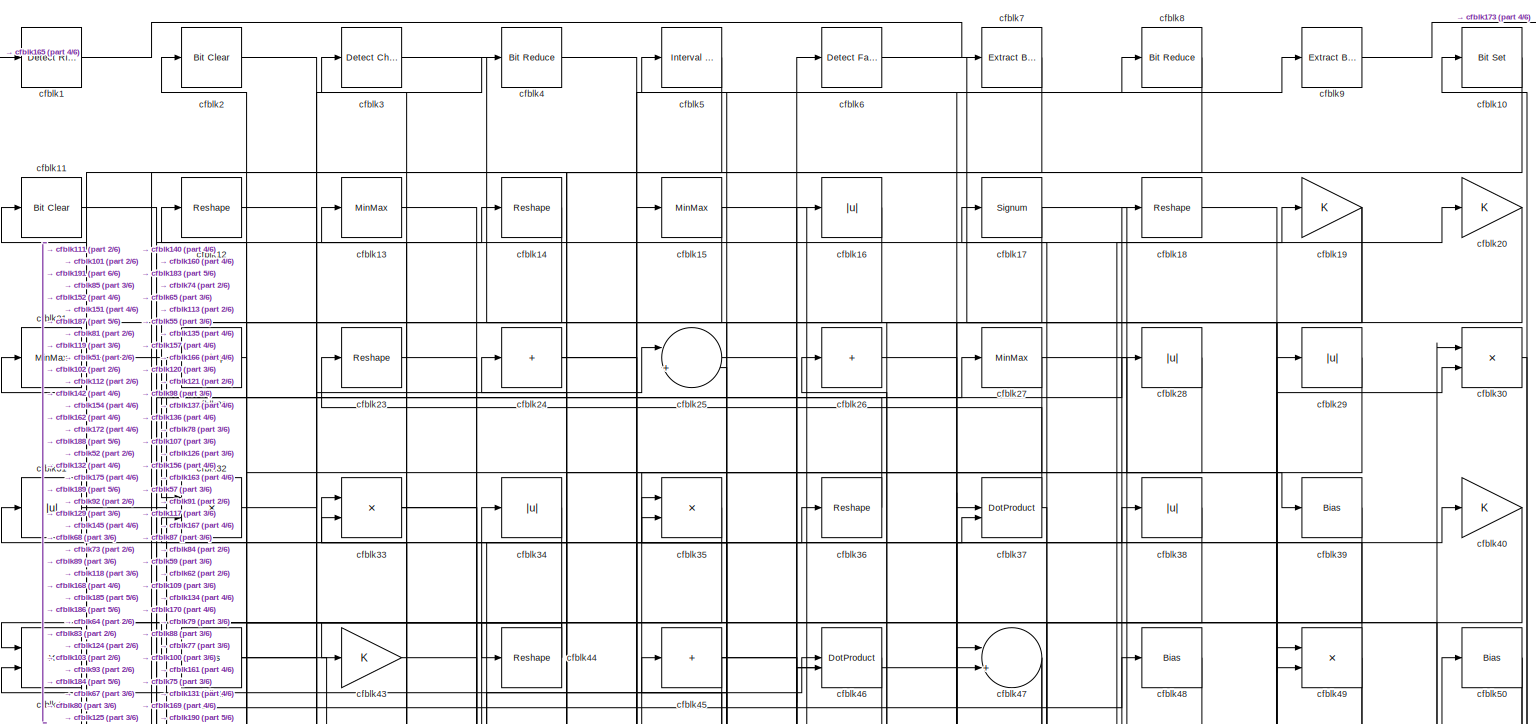
[diagram: root canvas - part 1/6, full width, top band]
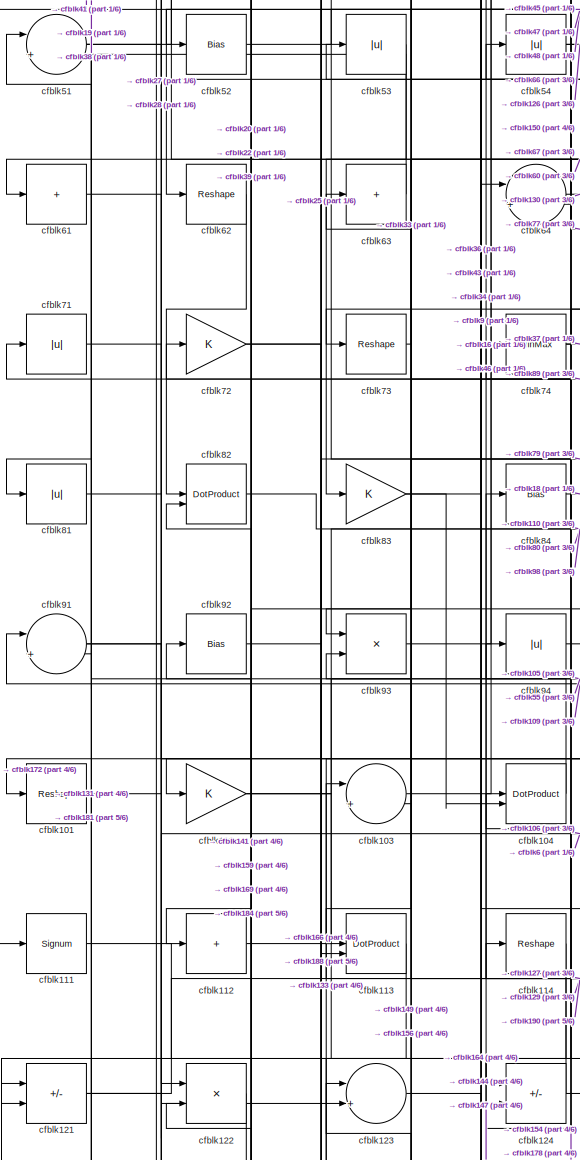
[diagram: root canvas - part 2/6, middle left region]
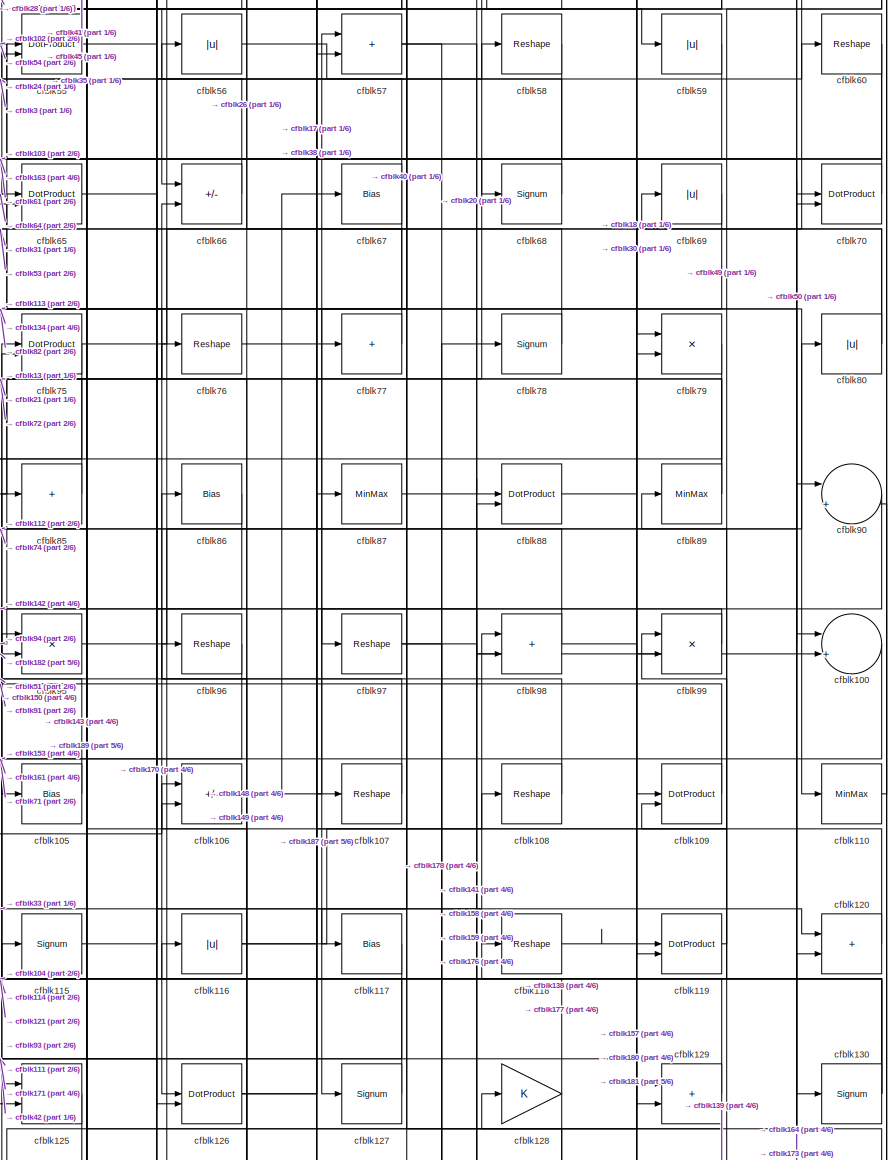
[diagram: root canvas - part 3/6, middle right region]
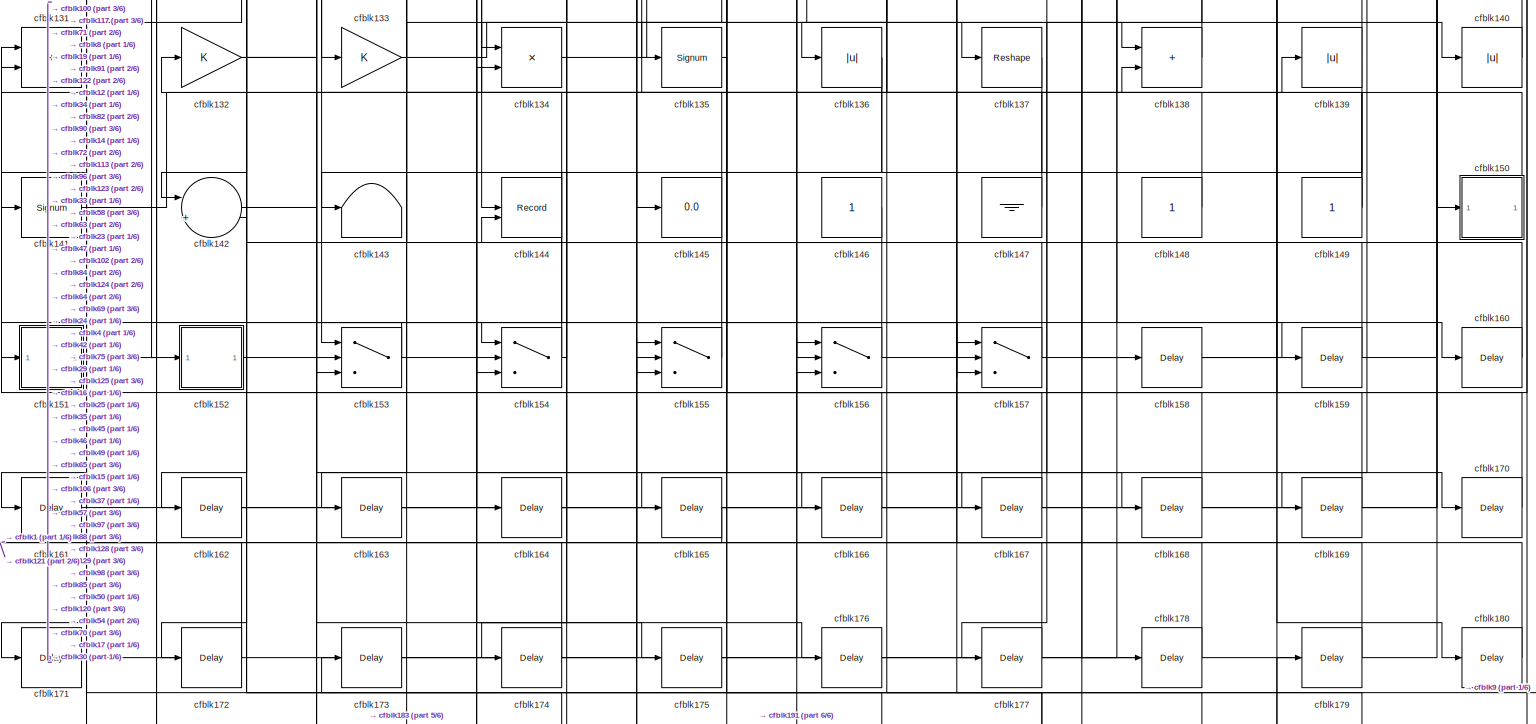
[diagram: root canvas - part 4/6, full width, bottom band]
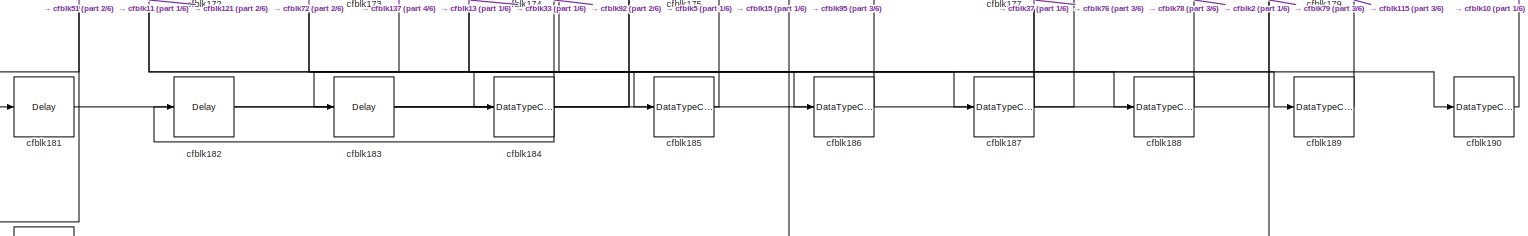
[diagram: root canvas - part 5/6, full width, bottom band]
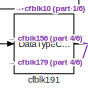
[diagram: root canvas - part 6/6, bottom left region]
MODEL slx_a8b3fae73b74
KIND model
CONFIG AbsTol = auto
CONFIG EnableMultiTasking = off
CONFIG FixedStep = auto
CONFIG MaxStep = auto
CONFIG MinStep = auto
CONFIG RelTol = 1e-3
CONFIG SampleTimeConstraint = Unconstrained
CONFIG SolverName = VariableStepAuto
CONFIG StartTime = 0.0
CONFIG StopTime = 10.0
BLOCK [Reference] cfblk1  REF=hdlsllib/Logic and Bit
Operations/Detect Rise
Nonnegative
  SourceBlock = hdlsllib/Logic and Bit\nOperations/Detect Rise\nNonnegative
  SourceType = Detect Rise Nonnegative
BLOCK [Reference] cfblk10  REF=simulink/Logic and Bit
Operations/Bit Set
  LibrarySourceBlock = hdlsllib/Logic and Bit\nOperations/Bit Set
  SourceBlock = simulink/Logic and Bit\nOperations/Bit Set
  SourceType = Bit Set
BLOCK [Sum] cfblk100
  Inputs = |++
BLOCK [Reshape] cfblk101
BLOCK [Gain] cfblk102
BLOCK [Sum] cfblk103
  Inputs = |++
BLOCK [DotProduct] cfblk104
  OutDataTypeStr = Inherit: Inherit via internal rule
BLOCK [Bias] cfblk105
  Bias = 0.0
  SaturateOnIntegerOverflow = off
BLOCK [Sum] cfblk106
  IconShape = rectangular
  Inputs = +-
BLOCK [Reshape] cfblk107
BLOCK [Reshape] cfblk108
BLOCK [DotProduct] cfblk109
  OutDataTypeStr = Inherit: Inherit via internal rule
BLOCK [Reference] cfblk11  REF=simulink/Logic and Bit
Operations/Bit Clear
  LibrarySourceBlock = hdlsllib/Logic and Bit\nOperations/Bit Clear
  SourceBlock = simulink/Logic and Bit\nOperations/Bit Clear
  SourceType = Bit Clear
BLOCK [MinMax] cfblk110
BLOCK [Signum] cfblk111
BLOCK [Sum] cfblk112
  IconShape = rectangular
  Inputs = +
BLOCK [DotProduct] cfblk113
  OutDataTypeStr = Inherit: Inherit via internal rule
BLOCK [Reshape] cfblk114
BLOCK [Signum] cfblk115
BLOCK [Abs] cfblk116
  SaturateOnIntegerOverflow = off
BLOCK [Bias] cfblk117
  Bias = 0.0
  SaturateOnIntegerOverflow = off
BLOCK [Reshape] cfblk118
BLOCK [DotProduct] cfblk119
  OutDataTypeStr = Inherit: Inherit via internal rule
BLOCK [Reshape] cfblk12
BLOCK [Sum] cfblk120
  IconShape = rectangular
BLOCK [Sum] cfblk121
  IconShape = rectangular
  Inputs = +-
BLOCK [Product] cfblk122
  Inputs = */
  RndMeth = Zero
  SaturateOnIntegerOverflow = on
BLOCK [Sum] cfblk123
  Inputs = |++
BLOCK [Sum] cfblk124
  IconShape = rectangular
  Inputs = +-
BLOCK [Sum] cfblk125
  IconShape = rectangular
BLOCK [DotProduct] cfblk126
  OutDataTypeStr = Inherit: Inherit via internal rule
BLOCK [Signum] cfblk127
BLOCK [Gain] cfblk128
BLOCK [Sum] cfblk129
  IconShape = rectangular
BLOCK [MinMax] cfblk13
BLOCK [Signum] cfblk130
BLOCK [Sum] cfblk131
  IconShape = rectangular
BLOCK [Gain] cfblk132
BLOCK [Gain] cfblk133
BLOCK [Product] cfblk134
  Inputs = */
  RndMeth = Zero
  SaturateOnIntegerOverflow = on
BLOCK [Signum] cfblk135
BLOCK [Abs] cfblk136
  SaturateOnIntegerOverflow = off
BLOCK [Reshape] cfblk137
BLOCK [Sum] cfblk138
  IconShape = rectangular
BLOCK [Abs] cfblk139
  SaturateOnIntegerOverflow = off
BLOCK [Reshape] cfblk14
BLOCK [Abs] cfblk140
  SaturateOnIntegerOverflow = off
BLOCK [Signum] cfblk141
BLOCK [Sum] cfblk142
  Inputs = |++
BLOCK [Terminator] cfblk143
BLOCK [Record] cfblk144
  CompatibilityTag = XY
  FileSettingsInternal = {"entries":[{"content":{"excelSettings":{"content":{},"type":"Streamout.ExcelSettings"}},"type":"Streamout.FileSettingStorage","uuid":""}],"packageUris":["http:\/\/schema.mathworks.com\/mf0\/streamout_blocks\/R2020a"],"version":"1.0"}
  Layout = [1 1]
  SignalsInternal = {"entries":[{"content":{"signals":[{"content":{"blockPath":[],"dimensions":[1],"domain":"","lineColor":"#a2142f","plots":[1],"port":1,"signalID":4612,"signalName":"XY Graph:1"},"type":"RecordBlkView.Signal","uuid":""},{"content":{"blockPath":[],"dimensions":[1],"domain":"","lineColor":"#139fff","plots":[1],"port":2,"signalID":4615,"signalName":"XY Graph:2"},"type":"RecordBlkView.Signal","uuid":""}...<+146ch>
  VisualizationBindings = {"xyplotplugin":{"info":[{"series":[{"bindingParametersList":[{"parameter":"X-Axis","signalID":4612,"signalName":"XY Graph:1"},{"parameter":"Y-Axis","signalID":4615,"signalName":"XY Graph:2"}],"seriesID":8507}],"subplotID":1}]}}
  st = -1
BLOCK [Display] cfblk145
  Decimation = 1
BLOCK [Constant] cfblk146
  SampleTime = -1
BLOCK [Ground] cfblk147
BLOCK [Constant] cfblk148
  SampleTime = -1
BLOCK [Constant] cfblk149
  SampleTime = -1
BLOCK [MinMax] cfblk15
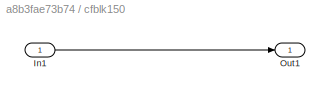
BLOCK [SubSystem] cfblk150
  LibrarySourceBlock = hdlsllib/Ports &\nSubsystems/Subsystem
BLOCK [Inport] cfblk150/In1
BLOCK [Outport] cfblk150/Out1
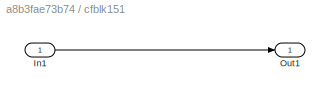
BLOCK [SubSystem] cfblk151
  LibrarySourceBlock = hdlsllib/Ports &\nSubsystems/Subsystem
BLOCK [Inport] cfblk151/In1
BLOCK [Outport] cfblk151/Out1
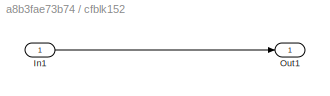
BLOCK [SubSystem] cfblk152
  LibrarySourceBlock = hdlsllib/Ports &\nSubsystems/Subsystem
BLOCK [Inport] cfblk152/In1
BLOCK [Outport] cfblk152/Out1
BLOCK [Switch] cfblk153
  InputSameDT = off
  SaturateOnIntegerOverflow = off
BLOCK [Switch] cfblk154
  InputSameDT = off
  SaturateOnIntegerOverflow = off
BLOCK [Switch] cfblk155
  InputSameDT = off
  SaturateOnIntegerOverflow = off
BLOCK [Switch] cfblk156
  InputSameDT = off
  SaturateOnIntegerOverflow = off
BLOCK [Switch] cfblk157
  InputSameDT = off
  SaturateOnIntegerOverflow = off
BLOCK [Delay] cfblk158
  InputPortMap = u0
  SampleTime = 1
BLOCK [Delay] cfblk159
  InputPortMap = u0
  SampleTime = 1
BLOCK [Abs] cfblk16
  SaturateOnIntegerOverflow = off
BLOCK [Delay] cfblk160
  InputPortMap = u0
  SampleTime = 1
BLOCK [Delay] cfblk161
  InputPortMap = u0
  SampleTime = 1
BLOCK [Delay] cfblk162
  InputPortMap = u0
  SampleTime = 1
BLOCK [Delay] cfblk163
  InputPortMap = u0
  SampleTime = 1
BLOCK [Delay] cfblk164
  InputPortMap = u0
  SampleTime = 1
BLOCK [Delay] cfblk165
  InputPortMap = u0
  SampleTime = 1
BLOCK [Delay] cfblk166
  InputPortMap = u0
  SampleTime = 1
BLOCK [Delay] cfblk167
  InputPortMap = u0
  SampleTime = 1
BLOCK [Delay] cfblk168
  InputPortMap = u0
  SampleTime = 1
BLOCK [Delay] cfblk169
  InputPortMap = u0
  SampleTime = 1
BLOCK [Signum] cfblk17
BLOCK [Delay] cfblk170
  InputPortMap = u0
  SampleTime = 1
BLOCK [Delay] cfblk171
  InputPortMap = u0
  SampleTime = 1
BLOCK [Delay] cfblk172
  InputPortMap = u0
  SampleTime = 1
BLOCK [Delay] cfblk173
  InputPortMap = u0
  SampleTime = 1
BLOCK [Delay] cfblk174
  InputPortMap = u0
  SampleTime = 1
BLOCK [Delay] cfblk175
  InputPortMap = u0
  SampleTime = 1
BLOCK [Delay] cfblk176
  InputPortMap = u0
  SampleTime = 1
BLOCK [Delay] cfblk177
  InputPortMap = u0
  SampleTime = 1
BLOCK [Delay] cfblk178
  InputPortMap = u0
  SampleTime = 1
BLOCK [Delay] cfblk179
  InputPortMap = u0
  SampleTime = 1
BLOCK [Reshape] cfblk18
BLOCK [Delay] cfblk180
  InputPortMap = u0
  SampleTime = 1
BLOCK [Delay] cfblk181
  InputPortMap = u0
  SampleTime = 1
BLOCK [Delay] cfblk182
  InputPortMap = u0
  SampleTime = 1
BLOCK [Delay] cfblk183
  InputPortMap = u0
  SampleTime = 1
BLOCK [DataTypeConversion] cfblk184
  RndMeth = Floor
  SaturateOnIntegerOverflow = off
BLOCK [DataTypeConversion] cfblk185
  OutDataTypeStr = uint8
  RndMeth = Floor
  SaturateOnIntegerOverflow = off
BLOCK [DataTypeConversion] cfblk186
  OutDataTypeStr = boolean
  RndMeth = Floor
  SaturateOnIntegerOverflow = off
BLOCK [DataTypeConversion] cfblk187
  RndMeth = Floor
  SaturateOnIntegerOverflow = off
BLOCK [DataTypeConversion] cfblk188
  OutDataTypeStr = boolean
  RndMeth = Floor
  SaturateOnIntegerOverflow = off
BLOCK [DataTypeConversion] cfblk189
  OutDataTypeStr = uint8
  RndMeth = Floor
  SaturateOnIntegerOverflow = off
BLOCK [Gain] cfblk19
BLOCK [DataTypeConversion] cfblk190
  OutDataTypeStr = boolean
  RndMeth = Floor
  SaturateOnIntegerOverflow = off
BLOCK [DataTypeConversion] cfblk191
  RndMeth = Floor
  SaturateOnIntegerOverflow = off
BLOCK [Reference] cfblk2  REF=simulink/Logic and Bit
Operations/Bit Clear
  LibrarySourceBlock = hdlsllib/Logic and Bit\nOperations/Bit Clear
  SourceBlock = simulink/Logic and Bit\nOperations/Bit Clear
  SourceType = Bit Clear
BLOCK [Gain] cfblk20
BLOCK [MinMax] cfblk21
BLOCK [Reshape] cfblk22
BLOCK [Reshape] cfblk23
BLOCK [Sum] cfblk24
  IconShape = rectangular
  Inputs = +
BLOCK [Sum] cfblk25
  Inputs = |++
BLOCK [Sum] cfblk26
  IconShape = rectangular
  Inputs = +
BLOCK [MinMax] cfblk27
BLOCK [Abs] cfblk28
  SaturateOnIntegerOverflow = off
BLOCK [Abs] cfblk29
  SaturateOnIntegerOverflow = off
BLOCK [Reference] cfblk3  REF=simulink/Logic and Bit
Operations/Detect
Change
  LibrarySourceBlock = hdlsllib/Logic and Bit\nOperations/Detect\nChange
  SourceBlock = simulink/Logic and Bit\nOperations/Detect\nChange
  SourceType = Detect Change
BLOCK [Product] cfblk30
  Inputs = */
  RndMeth = Zero
  SaturateOnIntegerOverflow = on
BLOCK [Abs] cfblk31
  SaturateOnIntegerOverflow = off
BLOCK [Product] cfblk32
  Inputs = */
  RndMeth = Zero
  SaturateOnIntegerOverflow = on
BLOCK [Product] cfblk33
  Inputs = */
  RndMeth = Zero
  SaturateOnIntegerOverflow = on
BLOCK [Abs] cfblk34
  SaturateOnIntegerOverflow = off
BLOCK [Product] cfblk35
  Inputs = */
  RndMeth = Zero
  SaturateOnIntegerOverflow = on
BLOCK [Reshape] cfblk36
BLOCK [DotProduct] cfblk37
  OutDataTypeStr = Inherit: Inherit via internal rule
BLOCK [Abs] cfblk38
  SaturateOnIntegerOverflow = off
BLOCK [Bias] cfblk39
  Bias = 0.0
  SaturateOnIntegerOverflow = off
BLOCK [Reference] cfblk4  REF=hdlsllib/Logic and Bit
Operations/Bit Reduce
  SourceBlock = hdlsllib/Logic and Bit\nOperations/Bit Reduce
  SourceType = Bit Reduce
BLOCK [Gain] cfblk40
BLOCK [Product] cfblk41
  Inputs = */
  RndMeth = Zero
  SaturateOnIntegerOverflow = on
BLOCK [Bias] cfblk42
  Bias = 0.0
  SaturateOnIntegerOverflow = off
BLOCK [Gain] cfblk43
BLOCK [Reshape] cfblk44
BLOCK [Sum] cfblk45
  IconShape = rectangular
  Inputs = +
BLOCK [DotProduct] cfblk46
  OutDataTypeStr = Inherit: Inherit via internal rule
BLOCK [Sum] cfblk47
  Inputs = |++
BLOCK [Bias] cfblk48
  Bias = 0.0
  SaturateOnIntegerOverflow = off
BLOCK [Product] cfblk49
  Inputs = */
  RndMeth = Zero
  SaturateOnIntegerOverflow = on
BLOCK [Reference] cfblk5  REF=hdlsllib/Logic and Bit
Operations/Interval Test
  SourceBlock = hdlsllib/Logic and Bit\nOperations/Interval Test
  SourceType = Interval Test
BLOCK [Bias] cfblk50
  Bias = 0.0
  SaturateOnIntegerOverflow = off
BLOCK [Sum] cfblk51
  Inputs = |++
BLOCK [Bias] cfblk52
  Bias = 0.0
  SaturateOnIntegerOverflow = off
BLOCK [Abs] cfblk53
  SaturateOnIntegerOverflow = off
BLOCK [Abs] cfblk54
  SaturateOnIntegerOverflow = off
BLOCK [DotProduct] cfblk55
  OutDataTypeStr = Inherit: Inherit via internal rule
BLOCK [Abs] cfblk56
  SaturateOnIntegerOverflow = off
BLOCK [Sum] cfblk57
  IconShape = rectangular
BLOCK [Reshape] cfblk58
BLOCK [Abs] cfblk59
  SaturateOnIntegerOverflow = off
BLOCK [Reference] cfblk6  REF=hdlsllib/Logic and Bit
Operations/Detect Fall
Nonpositive
  SourceBlock = hdlsllib/Logic and Bit\nOperations/Detect Fall\nNonpositive
  SourceType = Detect Fall Nonpositive
BLOCK [Reshape] cfblk60
BLOCK [Sum] cfblk61
  IconShape = rectangular
  Inputs = +
BLOCK [Reshape] cfblk62
BLOCK [Sum] cfblk63
  IconShape = rectangular
  Inputs = +
BLOCK [Sum] cfblk64
  Inputs = |++
BLOCK [DotProduct] cfblk65
  OutDataTypeStr = Inherit: Inherit via internal rule
BLOCK [Sum] cfblk66
  IconShape = rectangular
  Inputs = +-
BLOCK [Bias] cfblk67
  Bias = 0.0
  SaturateOnIntegerOverflow = off
BLOCK [Signum] cfblk68
BLOCK [Abs] cfblk69
  SaturateOnIntegerOverflow = off
BLOCK [Reference] cfblk7  REF=simulink/Logic and Bit
Operations/Extract Bits
  LibrarySourceBlock = hdlsllib/Logic and Bit\nOperations/Extract Bits
  SourceBlock = simulink/Logic and Bit\nOperations/Extract Bits
  SourceType = Extract Bits
BLOCK [DotProduct] cfblk70
  OutDataTypeStr = Inherit: Inherit via internal rule
BLOCK [Abs] cfblk71
  SaturateOnIntegerOverflow = off
BLOCK [Gain] cfblk72
BLOCK [Reshape] cfblk73
BLOCK [MinMax] cfblk74
BLOCK [DotProduct] cfblk75
  OutDataTypeStr = Inherit: Inherit via internal rule
BLOCK [Reshape] cfblk76
BLOCK [Sum] cfblk77
  IconShape = rectangular
  Inputs = +
BLOCK [Signum] cfblk78
BLOCK [Product] cfblk79
  Inputs = */
  RndMeth = Zero
  SaturateOnIntegerOverflow = on
BLOCK [Reference] cfblk8  REF=hdlsllib/Logic and Bit
Operations/Bit Reduce
  SourceBlock = hdlsllib/Logic and Bit\nOperations/Bit Reduce
  SourceType = Bit Reduce
BLOCK [Abs] cfblk80
  SaturateOnIntegerOverflow = off
BLOCK [Abs] cfblk81
  SaturateOnIntegerOverflow = off
BLOCK [DotProduct] cfblk82
  OutDataTypeStr = Inherit: Inherit via internal rule
BLOCK [Gain] cfblk83
BLOCK [Bias] cfblk84
  Bias = 0.0
  SaturateOnIntegerOverflow = off
BLOCK [Sum] cfblk85
  IconShape = rectangular
  Inputs = +
BLOCK [Bias] cfblk86
  Bias = 0.0
  SaturateOnIntegerOverflow = off
BLOCK [MinMax] cfblk87
BLOCK [DotProduct] cfblk88
  OutDataTypeStr = Inherit: Inherit via internal rule
BLOCK [MinMax] cfblk89
BLOCK [Reference] cfblk9  REF=simulink/Logic and Bit
Operations/Extract Bits
  LibrarySourceBlock = hdlsllib/Logic and Bit\nOperations/Extract Bits
  SourceBlock = simulink/Logic and Bit\nOperations/Extract Bits
  SourceType = Extract Bits
BLOCK [Sum] cfblk90
  Inputs = |++
BLOCK [Sum] cfblk91
  Inputs = |++
BLOCK [Bias] cfblk92
  Bias = 0.0
  SaturateOnIntegerOverflow = off
BLOCK [Product] cfblk93
  Inputs = */
  RndMeth = Zero
  SaturateOnIntegerOverflow = on
BLOCK [Abs] cfblk94
  SaturateOnIntegerOverflow = off
BLOCK [Product] cfblk95
  Inputs = */
  RndMeth = Zero
  SaturateOnIntegerOverflow = on
BLOCK [Reshape] cfblk96
BLOCK [Reshape] cfblk97
BLOCK [Sum] cfblk98
  IconShape = rectangular
BLOCK [Product] cfblk99
  Inputs = */
  RndMeth = Zero
  SaturateOnIntegerOverflow = on
LINE cfblk100:1 -> cfblk161:1
LINE cfblk101:1 -> cfblk28:1
NET cfblk102:1 -> cfblk144:1, cfblk55:1
LINE cfblk103:1 -> cfblk16:1
LINE cfblk104:1 -> cfblk94:1
LINE cfblk105:1 -> cfblk51:1
NET cfblk106:1 -> cfblk57:1, cfblk67:1
LINE cfblk107:1 -> cfblk86:1
LINE cfblk108:1 -> cfblk75:1
LINE cfblk109:1 -> cfblk91:1
LINE cfblk10:1 -> cfblk191:1
LINE cfblk110:1 -> cfblk90:2
LINE cfblk111:1 -> cfblk126:2
LINE cfblk112:1 -> cfblk80:1
LINE cfblk113:1 -> cfblk133:1
LINE cfblk114:1 -> cfblk121:2
LINE cfblk115:1 -> cfblk60:1
NET cfblk116:1 -> cfblk108:1, cfblk89:1
LINE cfblk117:1 -> cfblk171:1
LINE cfblk118:1 -> cfblk119:1
LINE cfblk119:1 -> cfblk99:1
LINE cfblk11:1 -> cfblk187:1
LINE cfblk120:1 -> cfblk35:1
NET cfblk121:1 -> cfblk106:2, cfblk190:1, cfblk6:1
LINE cfblk122:1 -> cfblk141:1
LINE cfblk123:1 -> cfblk164:1
NET cfblk124:1 -> cfblk34:1, cfblk9:1
LINE cfblk125:1 -> cfblk143:1
NET cfblk126:1 -> cfblk38:1, cfblk87:1
LINE cfblk127:1 -> cfblk104:1
NET cfblk128:1 -> cfblk116:1, cfblk177:1
LINE cfblk129:1 -> cfblk114:1
LINE cfblk12:1 -> cfblk175:1
NET cfblk130:1 -> cfblk103:1, cfblk109:2, cfblk93:2, cfblk95:1, cfblk98:1
LINE cfblk131:1 -> cfblk71:1
NET cfblk132:1 -> cfblk14:1, cfblk157:3
LINE cfblk133:1 -> cfblk138:1
LINE cfblk134:1 -> cfblk29:1
LINE cfblk135:1 -> cfblk165:1
NET cfblk136:1 -> cfblk154:1, cfblk174:1
LINE cfblk137:1 -> cfblk183:1
LINE cfblk138:1 -> cfblk128:1
NET cfblk139:1 -> cfblk155:3, cfblk85:1
LINE cfblk13:1 -> cfblk186:1
LINE cfblk140:1 -> cfblk17:1
LINE cfblk141:1 -> cfblk88:1
NET cfblk142:1 -> cfblk139:1, cfblk157:2
LINE cfblk146:1 -> cfblk144:2
LINE cfblk147:1 -> cfblk84:1
LINE cfblk148:1 -> cfblk106:1
NET cfblk149:1 -> cfblk63:1, cfblk96:1
LINE cfblk14:1 -> cfblk32:1
LINE cfblk150/In1:1 -> cfblk150/Out1:1
LINE cfblk150:1 -> cfblk75:2
LINE cfblk151/In1:1 -> cfblk151/Out1:1
LINE cfblk151:1 -> cfblk19:1
LINE cfblk152/In1:1 -> cfblk152/Out1:1
LINE cfblk152:1 -> cfblk138:2
NET cfblk153:1 -> cfblk151:1, cfblk176:1
NET cfblk154:1 -> cfblk124:2, cfblk12:1
LINE cfblk155:1 -> cfblk132:1
NET cfblk156:1 -> cfblk123:1, cfblk8:1
NET cfblk157:1 -> cfblk129:1, cfblk45:1
LINE cfblk158:1 -> cfblk70:2
LINE cfblk159:1 -> cfblk122:2
NET cfblk15:1 -> cfblk137:1, cfblk142:2
LINE cfblk160:1 -> cfblk33:2
LINE cfblk161:1 -> cfblk30:1
LINE cfblk162:1 -> cfblk134:2
LINE cfblk163:1 -> cfblk47:1
LINE cfblk164:1 -> cfblk90:1
LINE cfblk165:1 -> cfblk1:1
LINE cfblk166:1 -> cfblk35:2
LINE cfblk167:1 -> cfblk156:1
LINE cfblk168:1 -> cfblk25:2
LINE cfblk169:1 -> cfblk82:2
LINE cfblk16:1 -> cfblk135:1
LINE cfblk170:1 -> cfblk49:1
LINE cfblk171:1 -> cfblk155:2
LINE cfblk172:1 -> cfblk121:1
LINE cfblk173:1 -> cfblk120:2
LINE cfblk174:1 -> cfblk153:2
LINE cfblk175:1 -> cfblk46:2
LINE cfblk176:1 -> cfblk88:2
LINE cfblk177:1 -> cfblk157:1
LINE cfblk178:1 -> cfblk64:2
LINE cfblk179:1 -> cfblk155:1
NET cfblk17:1 -> cfblk57:2, cfblk59:1
LINE cfblk180:1 -> cfblk131:2
LINE cfblk181:1 -> cfblk79:2
LINE cfblk182:1 -> cfblk95:2
LINE cfblk183:1 -> cfblk15:1
NET cfblk184:1 -> cfblk182:1, cfblk92:1
LINE cfblk185:1 -> cfblk5:1
LINE cfblk186:1 -> cfblk11:1
NET cfblk187:1 -> cfblk37:1, cfblk76:1, cfblk78:1
LINE cfblk188:1 -> cfblk2:1
LINE cfblk189:1 -> cfblk115:1
LINE cfblk18:1 -> cfblk109:1
LINE cfblk190:1 -> cfblk10:1
NET cfblk191:1 -> cfblk156:3, cfblk179:1
NET cfblk19:1 -> cfblk136:1, cfblk81:1
LINE cfblk1:1 -> cfblk7:1
LINE cfblk20:1 -> cfblk52:1
LINE cfblk21:1 -> cfblk119:2
LINE cfblk22:1 -> cfblk112:1
LINE cfblk23:1 -> cfblk168:1
NET cfblk24:1 -> cfblk125:2, cfblk140:1
LINE cfblk25:1 -> cfblk47:2
LINE cfblk26:1 -> cfblk107:1
NET cfblk27:1 -> cfblk124:1, cfblk39:1
LINE cfblk28:1 -> cfblk65:1
LINE cfblk29:1 -> cfblk162:1
LINE cfblk2:1 -> cfblk189:1
LINE cfblk30:1 -> cfblk131:1
LINE cfblk31:1 -> cfblk100:1
LINE cfblk32:1 -> cfblk4:1
NET cfblk33:1 -> cfblk118:1, cfblk185:1
LINE cfblk34:1 -> cfblk172:1
LINE cfblk35:1 -> cfblk42:1
LINE cfblk36:1 -> cfblk22:1
NET cfblk37:1 -> cfblk167:1, cfblk23:1
LINE cfblk38:1 -> cfblk101:1
LINE cfblk39:1 -> cfblk102:1
LINE cfblk3:1 -> cfblk79:1
LINE cfblk40:1 -> cfblk117:1
LINE cfblk41:1 -> cfblk111:1
NET cfblk42:1 -> cfblk129:2, cfblk145:1
LINE cfblk43:1 -> cfblk64:1
NET cfblk44:1 -> cfblk41:1, cfblk43:1
NET cfblk45:1 -> cfblk113:2, cfblk120:1, cfblk98:2
LINE cfblk46:1 -> cfblk73:1
NET cfblk47:1 -> cfblk154:2, cfblk91:2
LINE cfblk48:1 -> cfblk62:1
NET cfblk49:1 -> cfblk156:2, cfblk32:2, cfblk77:1
LINE cfblk4:1 -> cfblk160:1
NET cfblk50:1 -> cfblk169:1, cfblk65:2
NET cfblk51:1 -> cfblk181:1, cfblk48:1, cfblk55:2
LINE cfblk52:1 -> cfblk66:1
LINE cfblk53:1 -> cfblk83:1
NET cfblk54:1 -> cfblk126:1, cfblk150:1
NET cfblk55:1 -> cfblk40:1, cfblk41:2
LINE cfblk56:1 -> cfblk58:1
NET cfblk57:1 -> cfblk100:2, cfblk178:1
LINE cfblk58:1 -> cfblk163:1
LINE cfblk59:1 -> cfblk99:2
LINE cfblk5:1 -> cfblk184:1
NET cfblk60:1 -> cfblk103:2, cfblk61:1
LINE cfblk61:1 -> cfblk123:2
LINE cfblk62:1 -> cfblk82:1
LINE cfblk63:1 -> cfblk51:2
LINE cfblk64:1 -> cfblk130:1
LINE cfblk65:1 -> cfblk170:1
LINE cfblk66:1 -> cfblk56:1
NET cfblk67:1 -> cfblk113:1, cfblk24:1
LINE cfblk68:1 -> cfblk3:1
LINE cfblk69:1 -> cfblk134:1
LINE cfblk6:1 -> cfblk49:2
LINE cfblk70:1 -> cfblk68:1
LINE cfblk71:1 -> cfblk105:1
NET cfblk72:1 -> cfblk166:1, cfblk188:1
LINE cfblk73:1 -> cfblk33:1
NET cfblk74:1 -> cfblk37:2, cfblk54:1
NET cfblk75:1 -> cfblk153:3, cfblk50:1
LINE cfblk76:1 -> cfblk127:1
LINE cfblk77:1 -> cfblk53:1
LINE cfblk78:1 -> cfblk26:1
LINE cfblk79:1 -> cfblk93:1
LINE cfblk7:1 -> cfblk44:1
NET cfblk80:1 -> cfblk31:1, cfblk69:1
LINE cfblk81:1 -> cfblk27:1
LINE cfblk82:1 -> cfblk110:1
NET cfblk83:1 -> cfblk104:2, cfblk36:1
LINE cfblk84:1 -> cfblk18:1
LINE cfblk85:1 -> cfblk21:1
LINE cfblk86:1 -> cfblk125:1
LINE cfblk87:1 -> cfblk20:1
LINE cfblk88:1 -> cfblk30:2
NET cfblk89:1 -> cfblk13:1, cfblk72:1
LINE cfblk8:1 -> cfblk152:1
LINE cfblk90:1 -> cfblk142:1
NET cfblk91:1 -> cfblk122:1, cfblk154:3
LINE cfblk92:1 -> cfblk25:1
LINE cfblk93:1 -> cfblk46:1
LINE cfblk94:1 -> cfblk66:2
LINE cfblk95:1 -> cfblk70:1
LINE cfblk96:1 -> cfblk153:1
NET cfblk97:1 -> cfblk158:1, cfblk159:1
NET cfblk98:1 -> cfblk180:1, cfblk74:1
LINE cfblk99:1 -> cfblk97:1
LINE cfblk9:1 -> cfblk173:1
note: NET lines group one-source signal fan-out (src -> all destinations, sorted); 1:1 wires keep LINE
